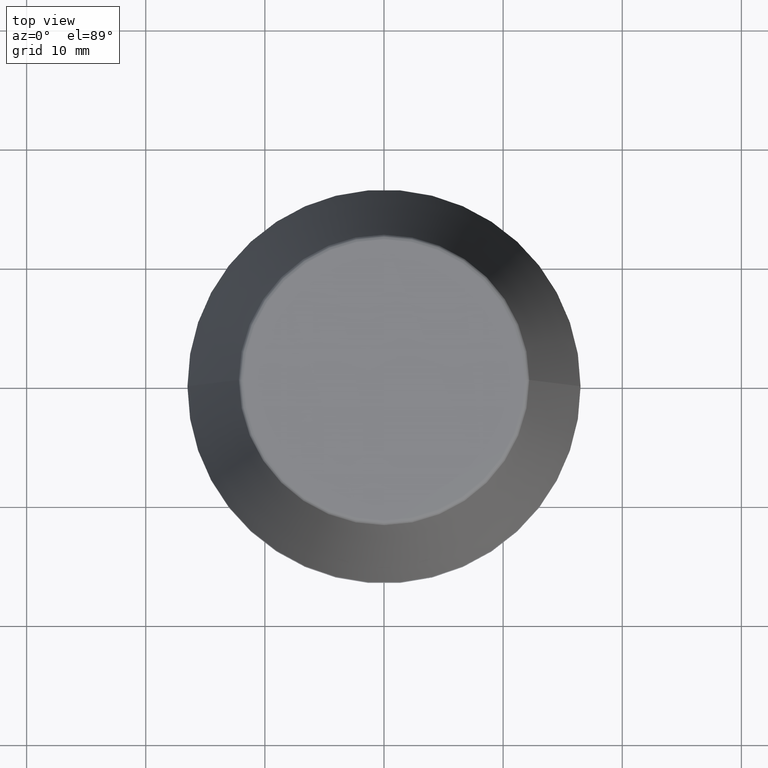
[diagram: clean part render]
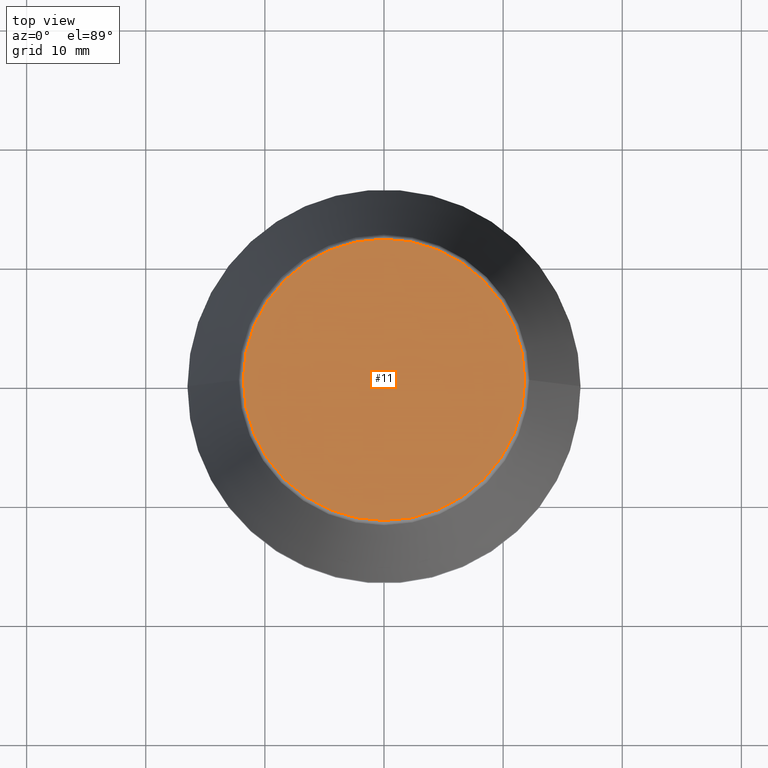
[diagram: same view with one face highlighted and labeled with its STEP entity id]
A machine part, top view. The second image highlights one B-rep face of the part: STEP entity #11.
In plain terms, the highlighted planar face has unit normal (0, 0, -1).
Its self-contained STEP definition (entity closure, byte-faithful):
#8 = DIRECTION ( 'NONE',  ( -0.0000000000000000000, -0.0000000000000000000, 1.000000000000000000 ) ) ;
#11 = ADVANCED_FACE ( 'NONE', ( #196 ), #320, .F. ) ;
#17 = CARTESIAN_POINT ( 'NONE',  ( 0.0000000000000000000, 0.0000000000000000000, 40.00000000000000700 ) ) ;
#33 = EDGE_LOOP ( 'NONE', ( #142, #341 ) ) ;
#76 = EDGE_CURVE ( 'NONE', #102, #290, #361, .T. ) ;
#87 = CARTESIAN_POINT ( 'NONE',  ( 0.0000000000000000000, 0.0000000000000000000, 40.00000000000000700 ) ) ;
#102 = VERTEX_POINT ( 'NONE', #264 ) ;
#127 = AXIS2_PLACEMENT_3D ( 'NONE', #17, #267, #384 ) ;
#137 = DIRECTION ( 'NONE',  ( -1.000000000000000000, 0.0000000000000000000, -0.0000000000000000000 ) ) ;
#142 = ORIENTED_EDGE ( 'NONE', *, *, #366, .T. ) ;
#194 = AXIS2_PLACEMENT_3D ( 'NONE', #87, #8, #217 ) ;
#196 = FACE_OUTER_BOUND ( 'NONE', #33, .T. ) ;
#217 = DIRECTION ( 'NONE',  ( 1.000000000000000000, 0.0000000000000000000, 0.0000000000000000000 ) ) ;
#260 = DIRECTION ( 'NONE',  ( 0.0000000000000000000, 0.0000000000000000000, -1.000000000000000000 ) ) ;
#264 = CARTESIAN_POINT ( 'NONE',  ( -11.80989888411031400, 1.470550059081603400E-015, 40.00000000000000700 ) ) ;
#267 = DIRECTION ( 'NONE',  ( -0.0000000000000000000, -0.0000000000000000000, 1.000000000000000000 ) ) ;
#271 = CARTESIAN_POINT ( 'NONE',  ( 11.80989888411031400, 0.0000000000000000000, 40.00000000000000700 ) ) ;
#279 = AXIS2_PLACEMENT_3D ( 'NONE', #376, #260, #137 ) ;
#290 = VERTEX_POINT ( 'NONE', #271 ) ;
#320 = PLANE ( 'NONE',  #279 ) ;
#341 = ORIENTED_EDGE ( 'NONE', *, *, #76, .T. ) ;
#361 = CIRCLE ( 'NONE', #194, 11.80989888411031400 ) ;
#366 = EDGE_CURVE ( 'NONE', #290, #102, #382, .T. ) ;
#376 = CARTESIAN_POINT ( 'NONE',  ( 0.0000000000000000000, 11.80989888411031400, 40.00000000000000700 ) ) ;
#382 = CIRCLE ( 'NONE', #127, 11.80989888411031400 ) ;
#384 = DIRECTION ( 'NONE',  ( 1.000000000000000000, 0.0000000000000000000, 0.0000000000000000000 ) ) ;